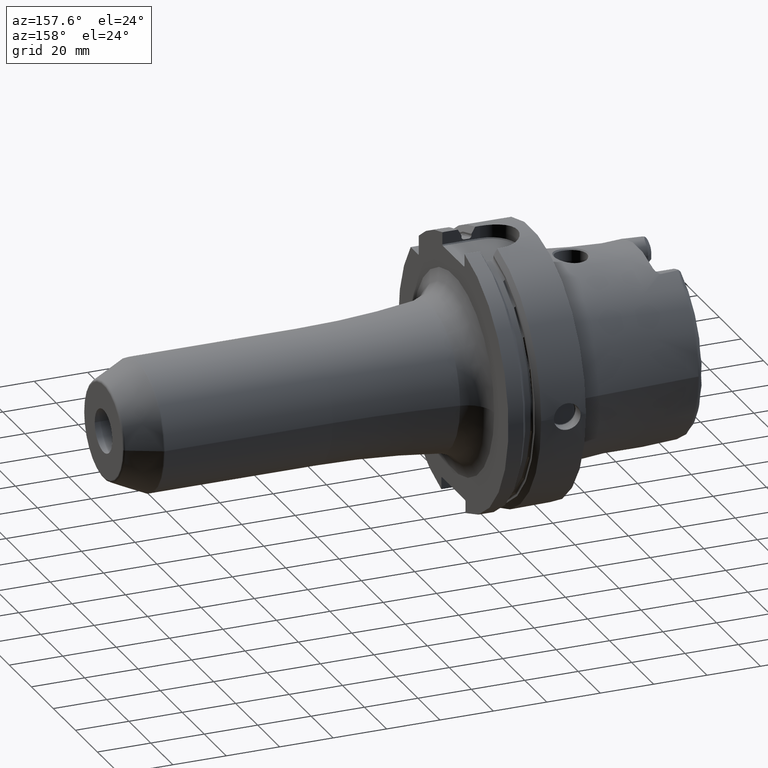
[diagram: clean part render]
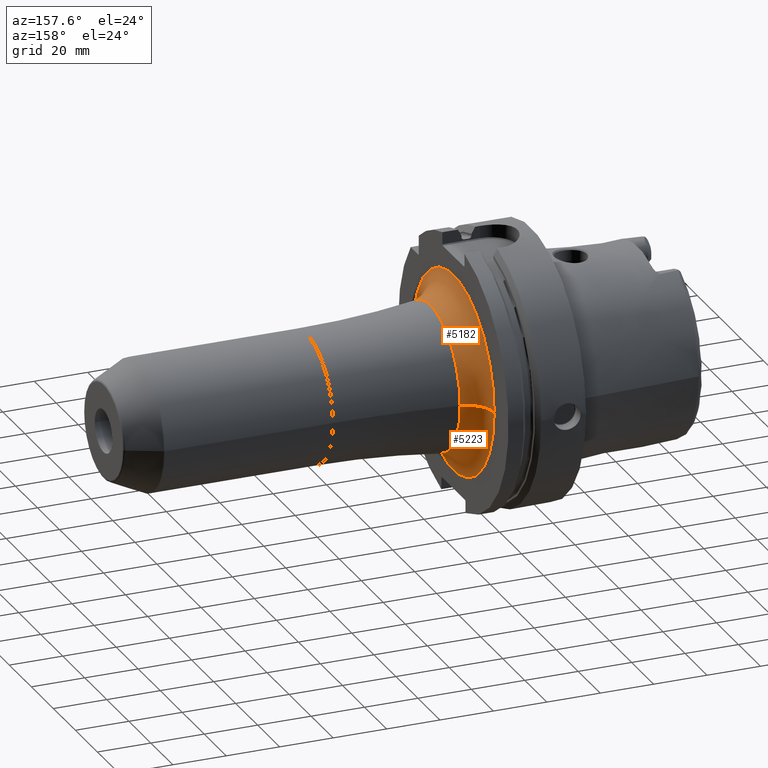
[diagram: same view with one multi-face feature highlighted, each face labeled with its STEP entity id]
A machine part, auxiliary view. The highlighted faces form ONE feature: a constant-radius fillet chain: 2 tangent blend faces with common blend radius 10 mm. The faces share edges in the B-rep.
Their STEP definitions:
[1] entity #5223 (Torus):
#1096=CARTESIAN_POINT('',(2.9E1,0.E0,0.E0));
#1097=DIRECTION('',(1.E0,0.E0,0.E0));
#1098=DIRECTION('',(0.E0,-1.E0,0.E0));
#1099=AXIS2_PLACEMENT_3D('',#1096,#1097,#1098);
#1810=CARTESIAN_POINT('',(3.9E1,3.699109804042E1,-1.904310042988E-13));
#1811=DIRECTION('',(0.E0,0.E0,1.E0));
#1812=DIRECTION('',(-1.E0,0.E0,0.E0));
#1813=AXIS2_PLACEMENT_3D('',#1810,#1811,#1812);
#1830=CARTESIAN_POINT('',(3.767647058823E1,0.E0,0.E0));
#1831=DIRECTION('',(1.E0,0.E0,0.E0));
#1832=DIRECTION('',(0.E0,-1.E0,0.E0));
#1833=AXIS2_PLACEMENT_3D('',#1830,#1831,#1832);
#1835=CARTESIAN_POINT('',(3.9E1,-3.699109804042E1,1.776773173034E-13));
#1836=DIRECTION('',(0.E0,0.E0,-1.E0));
#1837=DIRECTION('',(-1.E0,0.E0,0.E0));
#1838=AXIS2_PLACEMENT_3D('',#1835,#1836,#1837);
#3343=CARTESIAN_POINT('',(3.767647058823E1,2.707907151220E1,0.E0));
#3344=CARTESIAN_POINT('',(3.767647058823E1,-2.707907151220E1,0.E0));
#3345=VERTEX_POINT('',#3343);
#3346=VERTEX_POINT('',#3344);
#3347=CARTESIAN_POINT('',(2.9E1,3.699109804042E1,-1.189724451904E-14));
#3348=CARTESIAN_POINT('',(2.9E1,-3.699109804042E1,1.642734750026E-14));
#3349=VERTEX_POINT('',#3347);
#3350=VERTEX_POINT('',#3348);
#5212=CARTESIAN_POINT('',(3.9E1,0.E0,0.E0));
#5213=DIRECTION('',(1.E0,0.E0,0.E0));
#5214=DIRECTION('',(0.E0,-9.999953045017E-1,3.064469712168E-3));
#5215=AXIS2_PLACEMENT_3D('',#5212,#5213,#5214);
#5216=TOROIDAL_SURFACE('',#5215,3.699109804042E1,1.E1);
#5217=ORIENTED_EDGE('',*,*,#4450,.F.);
#5218=ORIENTED_EDGE('',*,*,#5175,.T.);
#5219=ORIENTED_EDGE('',*,*,#5203,.T.);
#5220=ORIENTED_EDGE('',*,*,#5178,.F.);
#5221=EDGE_LOOP('',(#5217,#5218,#5219,#5220));
#5222=FACE_OUTER_BOUND('',#5221,.F.);
#5223=ADVANCED_FACE('',(#5222),#5216,.F.);
#1100=CIRCLE('',#1099,3.699109804042E1);
#1814=CIRCLE('',#1813,1.E1);
#1834=CIRCLE('',#1833,2.707907151220E1);
#1839=CIRCLE('',#1838,1.E1);
#4450=EDGE_CURVE('',#3350,#3349,#1100,.T.);
#5175=EDGE_CURVE('',#3350,#3346,#1839,.T.);
#5178=EDGE_CURVE('',#3349,#3345,#1814,.T.);
#5203=EDGE_CURVE('',#3346,#3345,#1834,.T.);
[2] entity #5182 (Torus):
#1091=CARTESIAN_POINT('',(2.9E1,0.E0,0.E0));
#1092=DIRECTION('',(1.E0,0.E0,0.E0));
#1093=DIRECTION('',(0.E0,1.E0,0.E0));
#1094=AXIS2_PLACEMENT_3D('',#1091,#1092,#1093);
#1810=CARTESIAN_POINT('',(3.9E1,3.699109804042E1,-1.904310042988E-13));
#1811=DIRECTION('',(0.E0,0.E0,1.E0));
#1812=DIRECTION('',(-1.E0,0.E0,0.E0));
#1813=AXIS2_PLACEMENT_3D('',#1810,#1811,#1812);
#1815=CARTESIAN_POINT('',(3.767647058823E1,0.E0,0.E0));
#1816=DIRECTION('',(1.E0,0.E0,0.E0));
#1817=DIRECTION('',(0.E0,1.E0,0.E0));
#1818=AXIS2_PLACEMENT_3D('',#1815,#1816,#1817);
#1835=CARTESIAN_POINT('',(3.9E1,-3.699109804042E1,1.776773173034E-13));
#1836=DIRECTION('',(0.E0,0.E0,-1.E0));
#1837=DIRECTION('',(-1.E0,0.E0,0.E0));
#1838=AXIS2_PLACEMENT_3D('',#1835,#1836,#1837);
#3343=CARTESIAN_POINT('',(3.767647058823E1,2.707907151220E1,0.E0));
#3344=CARTESIAN_POINT('',(3.767647058823E1,-2.707907151220E1,0.E0));
#3345=VERTEX_POINT('',#3343);
#3346=VERTEX_POINT('',#3344);
#3347=CARTESIAN_POINT('',(2.9E1,3.699109804042E1,-1.189724451904E-14));
#3348=CARTESIAN_POINT('',(2.9E1,-3.699109804042E1,1.642734750026E-14));
#3349=VERTEX_POINT('',#3347);
#3350=VERTEX_POINT('',#3348);
#5168=CARTESIAN_POINT('',(3.9E1,0.E0,0.E0));
#5169=DIRECTION('',(1.E0,0.E0,0.E0));
#5170=DIRECTION('',(0.E0,9.999953045017E-1,-3.064469712168E-3));
#5171=AXIS2_PLACEMENT_3D('',#5168,#5169,#5170);
#5172=TOROIDAL_SURFACE('',#5171,3.699109804042E1,1.E1);
#5174=ORIENTED_EDGE('',*,*,#5173,.T.);
#5176=ORIENTED_EDGE('',*,*,#5175,.F.);
#5177=ORIENTED_EDGE('',*,*,#4448,.F.);
#5179=ORIENTED_EDGE('',*,*,#5178,.T.);
#5180=EDGE_LOOP('',(#5174,#5176,#5177,#5179));
#5181=FACE_OUTER_BOUND('',#5180,.F.);
#5182=ADVANCED_FACE('',(#5181),#5172,.F.);
#1095=CIRCLE('',#1094,3.699109804042E1);
#1814=CIRCLE('',#1813,1.E1);
#1819=CIRCLE('',#1818,2.707907151220E1);
#1839=CIRCLE('',#1838,1.E1);
#4448=EDGE_CURVE('',#3349,#3350,#1095,.T.);
#5173=EDGE_CURVE('',#3345,#3346,#1819,.T.);
#5175=EDGE_CURVE('',#3350,#3346,#1839,.T.);
#5178=EDGE_CURVE('',#3349,#3345,#1814,.T.);